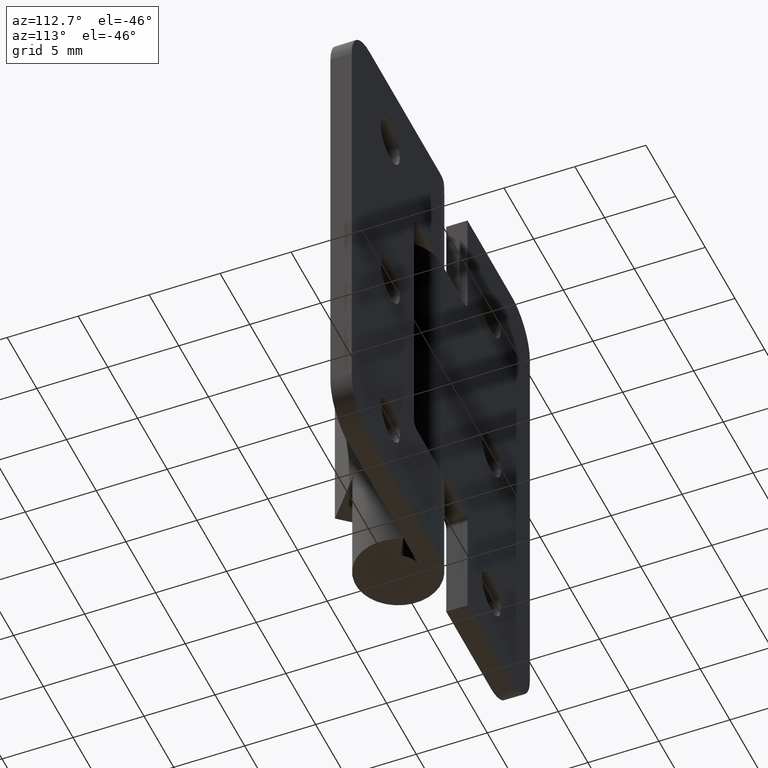
[diagram: clean part render]
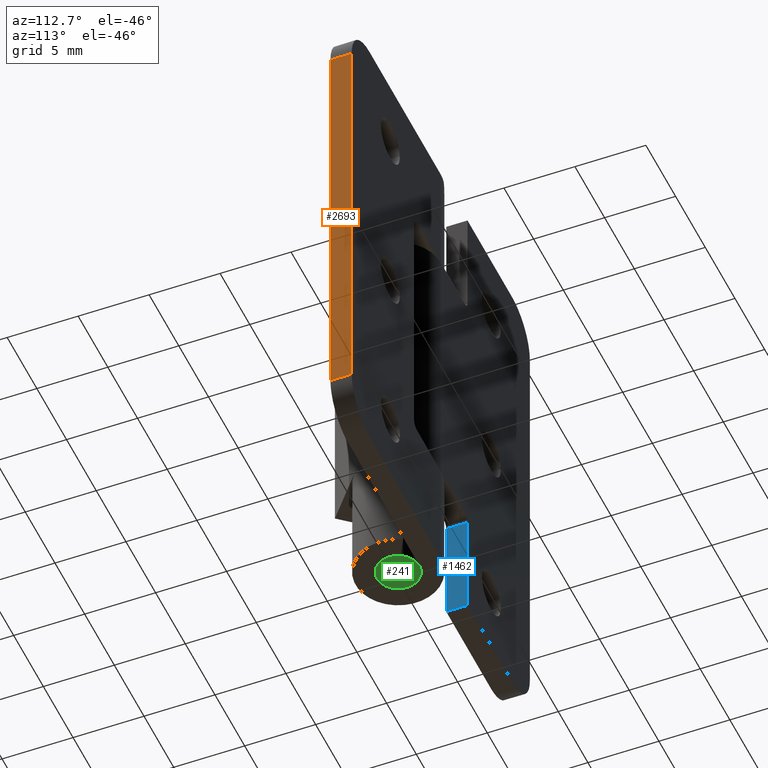
[diagram: same view with three faces highlighted in distinct colors, each labeled with its STEP entity id]
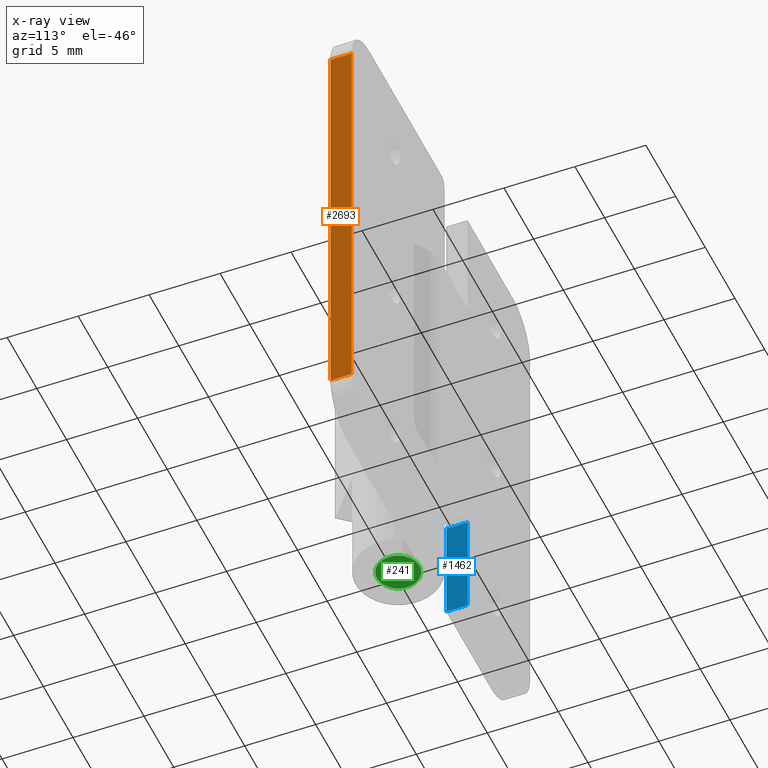
[diagram: x-ray of the same camera — body ghosted, the three highlighted faces saturated]
A machine part, auxiliary view with three faces highlighted in distinct colors.
The next image is the same camera in x-ray (body ghosted, the three faces saturated) — at least one of them is partly hidden behind the body in this view.
Their STEP definitions:

[orange] entity #2693 — the highlighted face is a freeform B-spline surface patch.
#2268=CARTESIAN_POINT('',(15.000006999999901,3.0,32.999993000000003));
#2269=VERTEX_POINT('',#2268);
#2290=CARTESIAN_POINT('',(15.000006999999901,1.500000000000000,32.999993000000003));
#2291=VERTEX_POINT('',#2290);
#2305=CARTESIAN_POINT('',(15.000006999999901,3.0,32.999993000000003));
#2306=CARTESIAN_POINT('',(15.000006999999901,1.500000000000000,32.999993000000003));
#2307=QUASI_UNIFORM_CURVE('',1,(#2305,#2306),.UNSPECIFIED.,.F.,.U.);
#2308=EDGE_CURVE('',#2269,#2291,#2307,.T.);
#2327=CARTESIAN_POINT('',(15.000006999999901,3.0,3.0));
#2328=VERTEX_POINT('',#2327);
#2344=CARTESIAN_POINT('',(15.000006999999901,1.500000000000000,3.0));
#2345=VERTEX_POINT('',#2344);
#2346=CARTESIAN_POINT('',(15.000006999999901,1.500000000000000,3.0));
#2347=CARTESIAN_POINT('',(15.000006999999901,3.0,3.0));
#2348=QUASI_UNIFORM_CURVE('',1,(#2346,#2347),.UNSPECIFIED.,.F.,.U.);
#2349=EDGE_CURVE('',#2345,#2328,#2348,.T.);
#2674=CARTESIAN_POINT('',(15.000006999999901,1.425075002907291,34.498492028967242));
#2675=CARTESIAN_POINT('',(15.000006999999901,1.425075002907291,1.501499629928554));
#2676=CARTESIAN_POINT('',(15.000006999999901,3.074925037325845,34.498492028967242));
#2677=CARTESIAN_POINT('',(15.000006999999901,3.074925037325845,1.501499629928554));
#2678=B_SPLINE_SURFACE_WITH_KNOTS('',1,1,((#2674,#2676),(#2675,#2677)),.UNSPECIFIED.,.F.,.F.,.U.,(2,2),(2,2),(0.0,32.996992399038689),(0.041708334948495,0.958291687403247),.UNSPECIFIED.);
#2679=CARTESIAN_POINT('',(15.000006999999901,1.500000000000000,32.999993000000003));
#2680=CARTESIAN_POINT('',(15.000006999999901,1.500000000000000,3.0));
#2681=QUASI_UNIFORM_CURVE('',1,(#2679,#2680),.UNSPECIFIED.,.F.,.U.);
#2682=EDGE_CURVE('',#2291,#2345,#2681,.T.);
#2683=ORIENTED_EDGE('',*,*,#2682,.T.);
#2684=ORIENTED_EDGE('',*,*,#2349,.T.);
#2685=CARTESIAN_POINT('',(15.000006999999901,3.0,32.999993000000003));
#2686=CARTESIAN_POINT('',(15.000006999999901,3.0,3.0));
#2687=QUASI_UNIFORM_CURVE('',1,(#2685,#2686),.UNSPECIFIED.,.F.,.U.);
#2688=EDGE_CURVE('',#2269,#2328,#2687,.T.);
#2689=ORIENTED_EDGE('',*,*,#2688,.F.);
#2690=ORIENTED_EDGE('',*,*,#2308,.T.);
#2691=EDGE_LOOP('',(#2683,#2684,#2689,#2690));
#2692=FACE_OUTER_BOUND('',#2691,.T.);
#2693=ADVANCED_FACE('',(#2692),#2678,.T.);

[blue] entity #1462 — the highlighted face is a freeform B-spline surface patch.
#1038=CARTESIAN_POINT('',(-4.500000000000000,1.499999999999946,7.749999999999901));
#1039=VERTEX_POINT('',#1038);
#1055=CARTESIAN_POINT('',(-4.500000000000000,3.0,7.749999999999901));
#1056=VERTEX_POINT('',#1055);
#1057=CARTESIAN_POINT('',(-4.500000000000000,3.0,7.749999999999901));
#1058=CARTESIAN_POINT('',(-4.500000000000000,1.499999999999946,7.749999999999901));
#1059=QUASI_UNIFORM_CURVE('',1,(#1057,#1058),.UNSPECIFIED.,.F.,.U.);
#1060=EDGE_CURVE('',#1056,#1039,#1059,.T.);
#1380=CARTESIAN_POINT('',(-4.500000000000000,1.499999999999946,0.0));
#1381=VERTEX_POINT('',#1380);
#1388=CARTESIAN_POINT('',(-4.500000000000000,3.0,0.0));
#1389=VERTEX_POINT('',#1388);
#1395=CARTESIAN_POINT('',(-4.500000000000000,1.499999999999946,0.0));
#1396=CARTESIAN_POINT('',(-4.500000000000000,3.0,0.0));
#1397=QUASI_UNIFORM_CURVE('',1,(#1395,#1396),.UNSPECIFIED.,.F.,.U.);
#1398=EDGE_CURVE('',#1381,#1389,#1397,.T.);
#1443=CARTESIAN_POINT('',(-4.500000000000000,1.425075002907234,-0.387112484978991));
#1444=CARTESIAN_POINT('',(-4.500000000000000,1.425075002907234,8.137112692850092));
#1445=CARTESIAN_POINT('',(-4.500000000000000,3.074925037325848,-0.387112484978991));
#1446=CARTESIAN_POINT('',(-4.500000000000000,3.074925037325848,8.137112692850092));
#1447=B_SPLINE_SURFACE_WITH_KNOTS('',1,1,((#1443,#1445),(#1444,#1446)),.UNSPECIFIED.,.F.,.F.,.U.,(2,2),(2,2),(0.0,8.524225177829083),(0.041708334948495,0.958291687403247),.UNSPECIFIED.);
#1448=CARTESIAN_POINT('',(-4.500000000000000,3.0,0.0));
#1449=CARTESIAN_POINT('',(-4.500000000000000,3.0,7.749999999999901));
#1450=QUASI_UNIFORM_CURVE('',1,(#1448,#1449),.UNSPECIFIED.,.F.,.U.);
#1451=EDGE_CURVE('',#1389,#1056,#1450,.T.);
#1452=ORIENTED_EDGE('',*,*,#1451,.T.);
#1453=ORIENTED_EDGE('',*,*,#1060,.T.);
#1454=CARTESIAN_POINT('',(-4.500000000000000,1.499999999999946,0.0));
#1455=CARTESIAN_POINT('',(-4.500000000000000,1.499999999999946,7.749999999999901));
#1456=QUASI_UNIFORM_CURVE('',1,(#1454,#1455),.UNSPECIFIED.,.F.,.U.);
#1457=EDGE_CURVE('',#1381,#1039,#1456,.T.);
#1458=ORIENTED_EDGE('',*,*,#1457,.F.);
#1459=ORIENTED_EDGE('',*,*,#1398,.T.);
#1460=EDGE_LOOP('',(#1452,#1453,#1458,#1459));
#1461=FACE_OUTER_BOUND('',#1460,.T.);
#1462=ADVANCED_FACE('',(#1461),#1447,.F.);

[green] entity #241 — the highlighted face is a freeform B-spline surface patch.
#66=CARTESIAN_POINT('',(0.177051352014075,-1.489514289542060,9.086170E-016));
#67=VERTEX_POINT('',#66);
#68=CARTESIAN_POINT('',(-1.500000000000000,0.0,0.0));
#69=VERTEX_POINT('',#68);
#70=CARTESIAN_POINT('',(0.177051352014075,-1.489514289542060,9.086170E-016));
#71=CARTESIAN_POINT('',(0.088836179507109,-1.500000000000000,0.0));
#72=CARTESIAN_POINT('',(0.0,-1.500000000000000,0.0));
#73=CARTESIAN_POINT('',(-1.500000000000000,-1.500000000000000,0.0));
#74=CARTESIAN_POINT('',(-1.500000000000000,0.0,0.0));
#82=(BOUNDED_CURVE()B_SPLINE_CURVE(2,(#70,#71,#72,#73,#74),.UNSPECIFIED.,.F.,.U.)B_SPLINE_CURVE_WITH_KNOTS((3,2,3),(0.229562473509078,0.250000000000000,0.500000000000000),.UNSPECIFIED.)CURVE()GEOMETRIC_REPRESENTATION_ITEM()RATIONAL_B_SPLINE_CURVE((0.956026754175015,0.976055948325954,1.0,0.707106781186548,1.0))REPRESENTATION_ITEM(''));
#83=EDGE_CURVE('',#67,#69,#82,.T.);
#124=CARTESIAN_POINT('',(-0.091572809360472,1.497202197629241,9.436896E-016));
#125=VERTEX_POINT('',#124);
#131=CARTESIAN_POINT('',(-1.500000000000000,0.0,0.0));
#132=CARTESIAN_POINT('',(-1.500000000000000,1.411059100248651,0.0));
#133=CARTESIAN_POINT('',(-0.091572809360472,1.497202197629242,9.436896E-016));
#141=(BOUNDED_CURVE()B_SPLINE_CURVE(2,(#131,#132,#133),.UNSPECIFIED.,.F.,.U.)B_SPLINE_CURVE_WITH_KNOTS((3,3),(0.500000000000000,0.739332962228556),.UNSPECIFIED.)CURVE()GEOMETRIC_REPRESENTATION_ITEM()RATIONAL_B_SPLINE_CURVE((1.0,0.719603993298880,0.976072041644456))REPRESENTATION_ITEM(''));
#142=EDGE_CURVE('',#69,#125,#141,.T.);
#165=CARTESIAN_POINT('',(1.500000000000000,0.0,0.0));
#166=VERTEX_POINT('',#165);
#167=CARTESIAN_POINT('',(1.500000000000000,0.0,0.0));
#168=CARTESIAN_POINT('',(1.499999999999999,-1.332261788874921,0.0));
#169=CARTESIAN_POINT('',(0.177051352014075,-1.489514289542060,9.086170E-016));
#177=(BOUNDED_CURVE()B_SPLINE_CURVE(2,(#167,#168,#169),.UNSPECIFIED.,.F.,.U.)B_SPLINE_CURVE_WITH_KNOTS((3,3),(0.0,0.229562473509077),.UNSPECIFIED.)CURVE()GEOMETRIC_REPRESENTATION_ITEM()RATIONAL_B_SPLINE_CURVE((1.0,0.731050832860594,0.956026754175015))REPRESENTATION_ITEM(''));
#178=EDGE_CURVE('',#166,#67,#177,.T.);
#180=CARTESIAN_POINT('',(-0.091572809360472,1.497202197629241,9.436896E-016));
#181=CARTESIAN_POINT('',(-0.045829145006233,1.500000000000000,0.0));
#182=CARTESIAN_POINT('',(0.0,1.500000000000000,0.0));
#183=CARTESIAN_POINT('',(1.500000000000000,1.500000000000000,0.0));
#184=CARTESIAN_POINT('',(1.500000000000000,0.0,0.0));
#192=(BOUNDED_CURVE()B_SPLINE_CURVE(2,(#180,#181,#182,#183,#184),.UNSPECIFIED.,.F.,.U.)B_SPLINE_CURVE_WITH_KNOTS((3,2,3),(0.739332962228557,0.750000000000000,1.0),.UNSPECIFIED.)CURVE()GEOMETRIC_REPRESENTATION_ITEM()RATIONAL_B_SPLINE_CURVE((0.976072041644458,0.987502787887669,1.0,0.707106781186548,1.0))REPRESENTATION_ITEM(''));
#193=EDGE_CURVE('',#125,#166,#192,.T.);
#230=CARTESIAN_POINT('',(-1.649849994185418,-1.649822796803176,0.0));
#231=CARTESIAN_POINT('',(1.649850074651688,-1.649822796803176,0.0));
#232=CARTESIAN_POINT('',(-1.649849994185418,1.649813489537895,0.0));
#233=CARTESIAN_POINT('',(1.649850074651688,1.649813489537895,0.0));
#234=B_SPLINE_SURFACE_WITH_KNOTS('',1,1,((#230,#232),(#231,#233)),.UNSPECIFIED.,.F.,.F.,.U.,(2,2),(2,2),(0.0,3.299700068837106),(0.0,3.299636286341071),.UNSPECIFIED.);
#235=ORIENTED_EDGE('',*,*,#178,.T.);
#236=ORIENTED_EDGE('',*,*,#83,.T.);
#237=ORIENTED_EDGE('',*,*,#142,.T.);
#238=ORIENTED_EDGE('',*,*,#193,.T.);
#239=EDGE_LOOP('',(#235,#236,#237,#238));
#240=FACE_OUTER_BOUND('',#239,.T.);
#241=ADVANCED_FACE('',(#240),#234,.F.);